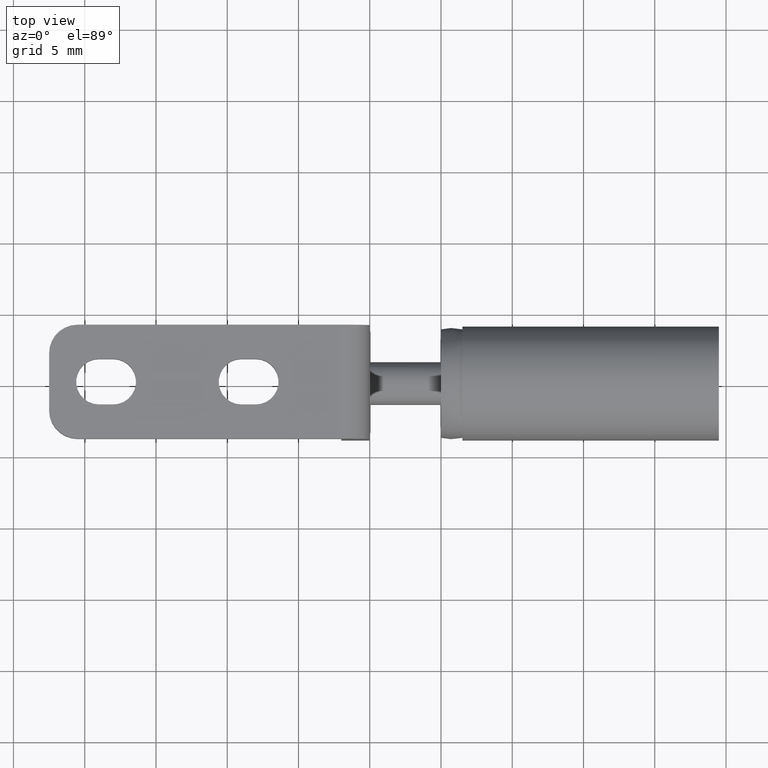
[diagram: clean part render]
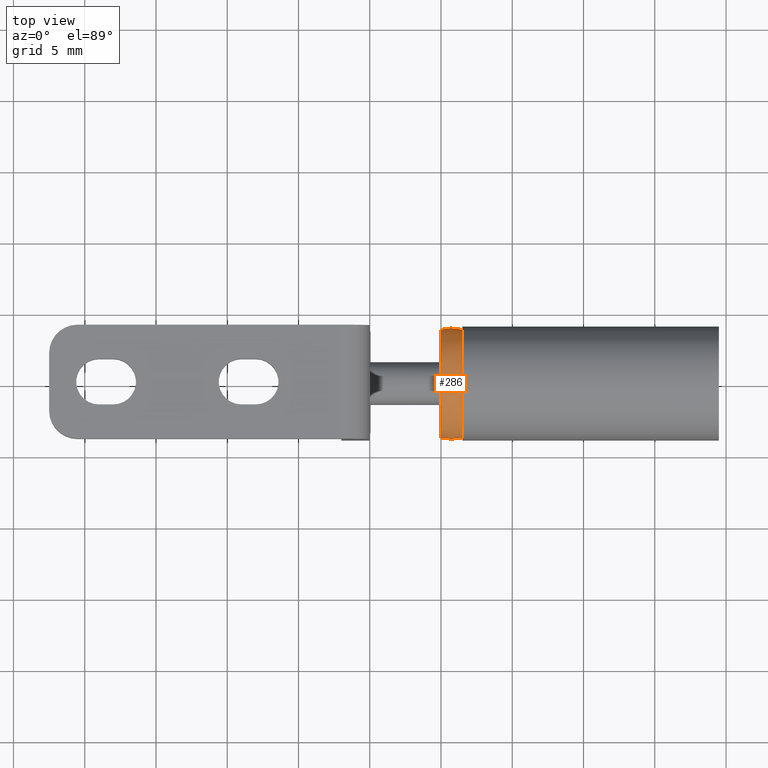
[diagram: same view with one face highlighted and labeled with its STEP entity id]
A machine part, top view. The second image highlights one B-rep face of the part: STEP entity #286.
In plain terms, the highlighted face is a freeform B-spline surface patch.
Its self-contained STEP definition (entity closure, byte-faithful):
#286=ADVANCED_FACE('',(#623,#624),#622,.T.);
#622=( BOUNDED_SURFACE() B_SPLINE_SURFACE( 2,2,((#1474,#1475,#1476,#1477,#1478,#1479),(#1480,#1481,#1482,#1483,#1484,#1485),(#1486,#1487,#1488,#1489,#1490,#1491),(#1492,#1493,#1494,#1495,#1496,#1497),(#1498,#1499,#1500,#1501,#1502,#1503),(#1504,#1505,#1506,#1507,#1508,#1509)), .UNSPECIFIED.,.F.,.F.,.F.) B_SPLINE_SURFACE_WITH_KNOTS((3,1,1,1,3),(3,1,1,1,3),(0.00000000000E+00,4.11096202784E+00,8.22192405568E+00,1.23328860835E+01,1.64438481114E+01),(0.00000000000E+00,4.11096202784E+00,8.22192405568E+00,1.23328860835E+01,1.64438481114E+01), .UNSPECIFIED. ) GEOMETRIC_REPRESENTATION_ITEM() RATIONAL_B_SPLINE_SURFACE(((4.20000249780E+00,3.40000187335E+00,2.60000124890E+00,2.60000124890E+00,3.40000187335E+00,4.20000249780E+00),(3.40000187335E+00,2.60000124890E+00,1.80000062445E+00,1.80000062445E+00,2.60000124890E+00,3.40000187335E+00),(2.60000124890E+00,1.80000062445E+00,1.00000000000E+00,1.00000000000E+00,1.80000062445E+00,2.60000124890E+00),(2.60000124890E+00,1.80000062445E+00,1.00000000000E+00,1.00000000000E+00,1.80000062445E+00,2.60000124890E+00),(3.40000187335E+00,2.60000124890E+00,1.80000062445E+00,1.80000062445E+00,2.60000124890E+00,3.40000187335E+00),(4.20000249780E+00,3.40000187335E+00,2.60000124890E+00,2.60000124890E+00,3.40000187335E+00,4.20000249780E+00))) REPRESENTATION_ITEM('') SURFACE() );
#623=FACE_OUTER_BOUND('',#1510,.T.);
#624=FACE_BOUND('',#1511,.T.);
#1474=CARTESIAN_POINT('',(3.70714096734E+00,-2.34912019023E+00,-2.34912726146E+00));
#1475=CARTESIAN_POINT('',(4.14411569910E+00,-2.90185442432E+00,-2.17639811229E+00));
#1476=CARTESIAN_POINT('',(4.84999841305E+00,-3.79473290458E+00,-9.48690857579E-01));
#1477=CARTESIAN_POINT('',(4.84999916151E+00,-3.79473290458E+00,9.48675567636E-01));
#1478=CARTESIAN_POINT('',(4.14411741617E+00,-2.90185442432E+00,2.17638337925E+00));
#1479=CARTESIAN_POINT('',(3.70714282069E+00,-2.34912019023E+00,2.34911287317E+00));
#1480=CARTESIAN_POINT('',(4.14411536927E+00,-2.17639084239E+00,-2.90186169421E+00));
#1481=CARTESIAN_POINT('',(4.84999760750E+00,-2.84604969197E+00,-2.84605728279E+00));
#1482=CARTESIAN_POINT('',(6.18333153682E+00,-4.11096111042E+00,-1.37032854977E+00));
#1483=CARTESIAN_POINT('',(6.18333261793E+00,-4.11096111042E+00,1.37031220789E+00));
#1484=CARTESIAN_POINT('',(4.84999985290E+00,-2.84604969197E+00,2.84604199285E+00));
#1485=CARTESIAN_POINT('',(4.14411765869E+00,-2.17639084239E+00,2.90184696118E+00));
#1486=CARTESIAN_POINT('',(4.84999711911E+00,-9.48683266758E-01,-3.79474049540E+00));
#1487=CARTESIAN_POINT('',(6.18333029080E+00,-1.37032035276E+00,-4.11096930743E+00));
#1488=CARTESIAN_POINT('',(9.64999917540E+00,-2.46657730294E+00,-2.46658707605E+00));
#1489=CARTESIAN_POINT('',(9.65000112141E+00,-2.46657730294E+00,2.46656799913E+00));
#1490=CARTESIAN_POINT('',(6.18333353415E+00,-1.37032035276E+00,4.11095296555E+00));
#1491=CARTESIAN_POINT('',(4.85000011297E+00,-9.48683266758E-01,3.79472520546E+00));
#1492=CARTESIAN_POINT('',(4.84999700495E+00,9.48683158457E-01,-3.79474049540E+00));
#1493=CARTESIAN_POINT('',(6.18333012591E+00,1.37032040490E+00,-4.11096930743E+00));
#1494=CARTESIAN_POINT('',(9.64999887859E+00,2.46657777224E+00,-2.46658707605E+00));
#1495=CARTESIAN_POINT('',(9.65000082460E+00,2.46657777224E+00,2.46656799913E+00));
#1496=CARTESIAN_POINT('',(6.18333336926E+00,1.37032040490E+00,4.11095296555E+00));
#1497=CARTESIAN_POINT('',(4.84999999881E+00,9.48683158457E-01,3.79472520546E+00));
#1498=CARTESIAN_POINT('',(4.14411510738E+00,2.17639064915E+00,-2.90186169421E+00));
#1499=CARTESIAN_POINT('',(4.84999726503E+00,2.84604958367E+00,-2.84605728279E+00));
#1500=CARTESIAN_POINT('',(6.18333104213E+00,4.11096116256E+00,-1.37032854977E+00));
#1501=CARTESIAN_POINT('',(6.18333212324E+00,4.11096116256E+00,1.37031220789E+00));
#1502=CARTESIAN_POINT('',(4.84999951042E+00,2.84604958367E+00,2.84604199285E+00));
#1503=CARTESIAN_POINT('',(4.14411739680E+00,2.17639064915E+00,2.90184696118E+00));
#1504=CARTESIAN_POINT('',(3.70714068466E+00,2.34911994440E+00,-2.34912726146E+00));
#1505=CARTESIAN_POINT('',(4.14411534990E+00,2.90185423108E+00,-2.17639811229E+00));
#1506=CARTESIAN_POINT('',(4.84999795641E+00,3.79473279628E+00,-9.48690857579E-01));
#1507=CARTESIAN_POINT('',(4.84999870488E+00,3.79473279628E+00,9.48675567636E-01));
#1508=CARTESIAN_POINT('',(4.14411706697E+00,2.90185423108E+00,2.17638337925E+00));
#1509=CARTESIAN_POINT('',(3.70714253801E+00,2.34911994440E+00,2.34911287317E+00));
#1510=EDGE_LOOP('',(#2044));
#1511=EDGE_LOOP('',(#2045));
#2044=ORIENTED_EDGE('',*,*,#2495,.F.);
#2045=ORIENTED_EDGE('',*,*,#2453,.T.);
#2453=EDGE_CURVE('',#2921,#2921,#2922,.T.);
#2495=EDGE_CURVE('',#3204,#3204,#3205,.T.);
#2921=VERTEX_POINT('',#4529);
#2922=CIRCLE('',#4533,3.82721324665E+00);
#3204=VERTEX_POINT('',#4776);
#3205=CIRCLE('',#4780,3.82721324941E+00);
#4529=CARTESIAN_POINT('',(6.50000000000E+00,-4.68682965928E-16,3.82721324665E+00));
#4530=CARTESIAN_POINT('',(6.50000000000E+00,0.00000000000E+00,0.00000000000E+00));
#4531=DIRECTION('',(-1.00000000000E+00,1.64097724114E-16,0.00000000000E+00));
#4532=DIRECTION('',(-0.00000000000E+00,-0.00000000000E+00,1.00000000000E+00));
#4533=AXIS2_PLACEMENT_3D('',#4530,#4531,#4532);
#4776=CARTESIAN_POINT('',(5.00000001409E+00,-4.68682966267E-16,3.82721324941E+00));
#4777=CARTESIAN_POINT('',(5.00000001409E+00,0.00000000000E+00,0.00000000000E+00));
#4778=DIRECTION('',(-1.00000000000E+00,0.00000000000E+00,-0.00000000000E+00));
#4779=DIRECTION('',(-0.00000000000E+00,-0.00000000000E+00,1.00000000000E+00));
#4780=AXIS2_PLACEMENT_3D('',#4777,#4778,#4779);